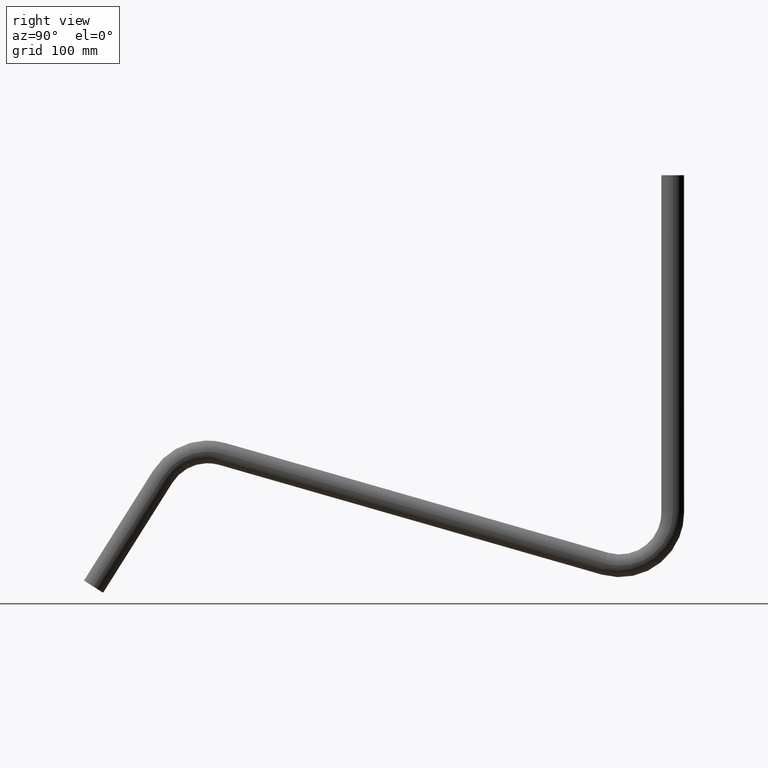
[diagram: clean part render]
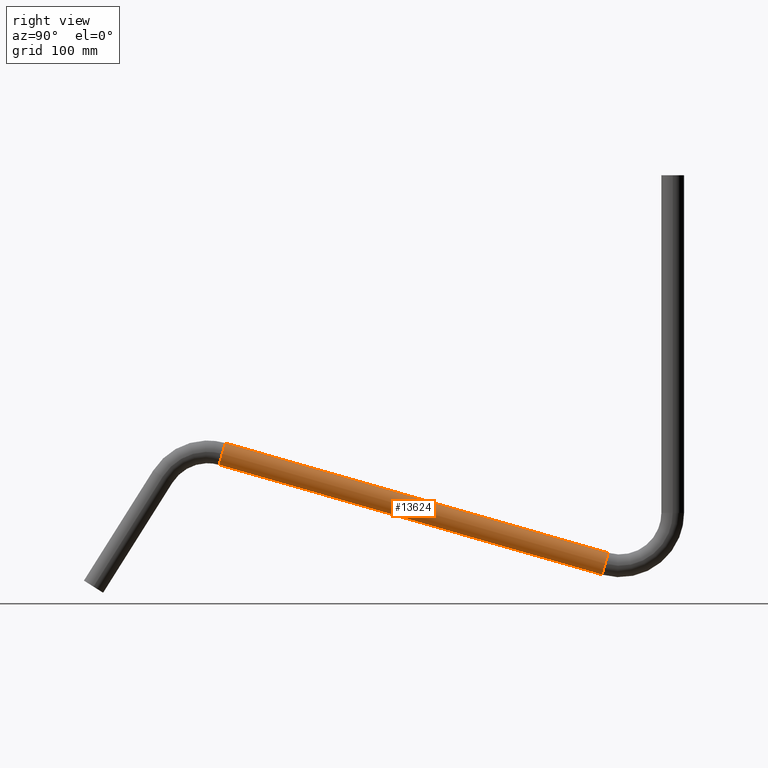
[diagram: same view with one face highlighted and labeled with its STEP entity id]
A machine part, right view. The second image highlights one B-rep face of the part: STEP entity #13624.
In plain terms, the highlighted cylindrical surface (bore or boss wall) has radius 16.85 mm, axis along (0, 0.9613, -0.2756).
Its self-contained STEP definition (entity closure, byte-faithful):
#132 = EDGE_LOOP ( 'NONE', ( #4706 ) ) ;
#1871 = CARTESIAN_POINT ( 'NONE',  ( 16.85000000000000142, 189.6445053089139208, 195.6123688330031598 ) ) ;
#2180 = AXIS2_PLACEMENT_3D ( 'NONE', #13233, #10083, #6884 ) ;
#2266 = CYLINDRICAL_SURFACE ( 'NONE', #2180, 16.85000000000000142 ) ;
#2916 = CIRCLE ( 'NONE', #8192, 16.85000000000000142 ) ;
#4154 = CARTESIAN_POINT ( 'NONE',  ( 0.000000000000000000, 754.0012469943004589, 33.78567723284064783 ) ) ;
#4285 = DIRECTION ( 'NONE',  ( 1.000000000000000000, 0.000000000000000000, 0.000000000000000000 ) ) ;
#4706 = ORIENTED_EDGE ( 'NONE', *, *, #10928, .T. ) ;
#5104 = FACE_OUTER_BOUND ( 'NONE', #132, .T. ) ;
#5301 = CARTESIAN_POINT ( 'NONE',  ( 0.000000000000000000, 189.6445053089139208, 195.6123688330031598 ) ) ;
#5929 = EDGE_LOOP ( 'NONE', ( #6844 ) ) ;
#6085 = VERTEX_POINT ( 'NONE', #1871 ) ;
#6254 = EDGE_CURVE ( 'NONE', #12015, #12015, #8606, .T. ) ;
#6350 = DIRECTION ( 'NONE',  ( 0.000000000000000000, 0.9612616959383180060, -0.2756373558170028271 ) ) ;
#6832 = AXIS2_PLACEMENT_3D ( 'NONE', #4154, #13616, #7283 ) ;
#6844 = ORIENTED_EDGE ( 'NONE', *, *, #6254, .F. ) ;
#6884 = DIRECTION ( 'NONE',  ( 0.000000000000000000, 0.2756373558170038263, 0.9612616959383174509 ) ) ;
#7283 = DIRECTION ( 'NONE',  ( 1.000000000000000000, 0.000000000000000000, 0.000000000000000000 ) ) ;
#7736 = FACE_OUTER_BOUND ( 'NONE', #5929, .T. ) ;
#8192 = AXIS2_PLACEMENT_3D ( 'NONE', #5301, #6350, #4285 ) ;
#8226 = CARTESIAN_POINT ( 'NONE',  ( 16.85000000000000142, 754.0012469943004589, 33.78567723284064783 ) ) ;
#8606 = CIRCLE ( 'NONE', #6832, 16.85000000000000142 ) ;
#10083 = DIRECTION ( 'NONE',  ( 0.000000000000000000, 0.9612616959383177839, -0.2756373558170031601 ) ) ;
#10928 = EDGE_CURVE ( 'NONE', #6085, #6085, #2916, .T. ) ;
#12015 = VERTEX_POINT ( 'NONE', #8226 ) ;
#13233 = CARTESIAN_POINT ( 'NONE',  ( 0.000000000000000000, 189.6445053089139208, 195.6123688330031598 ) ) ;
#13616 = DIRECTION ( 'NONE',  ( 0.000000000000000000, 0.9612616959383178949, -0.2756373558170031601 ) ) ;
#13624 = ADVANCED_FACE ( 'NONE', ( #7736, #5104 ), #2266, .T. ) ;